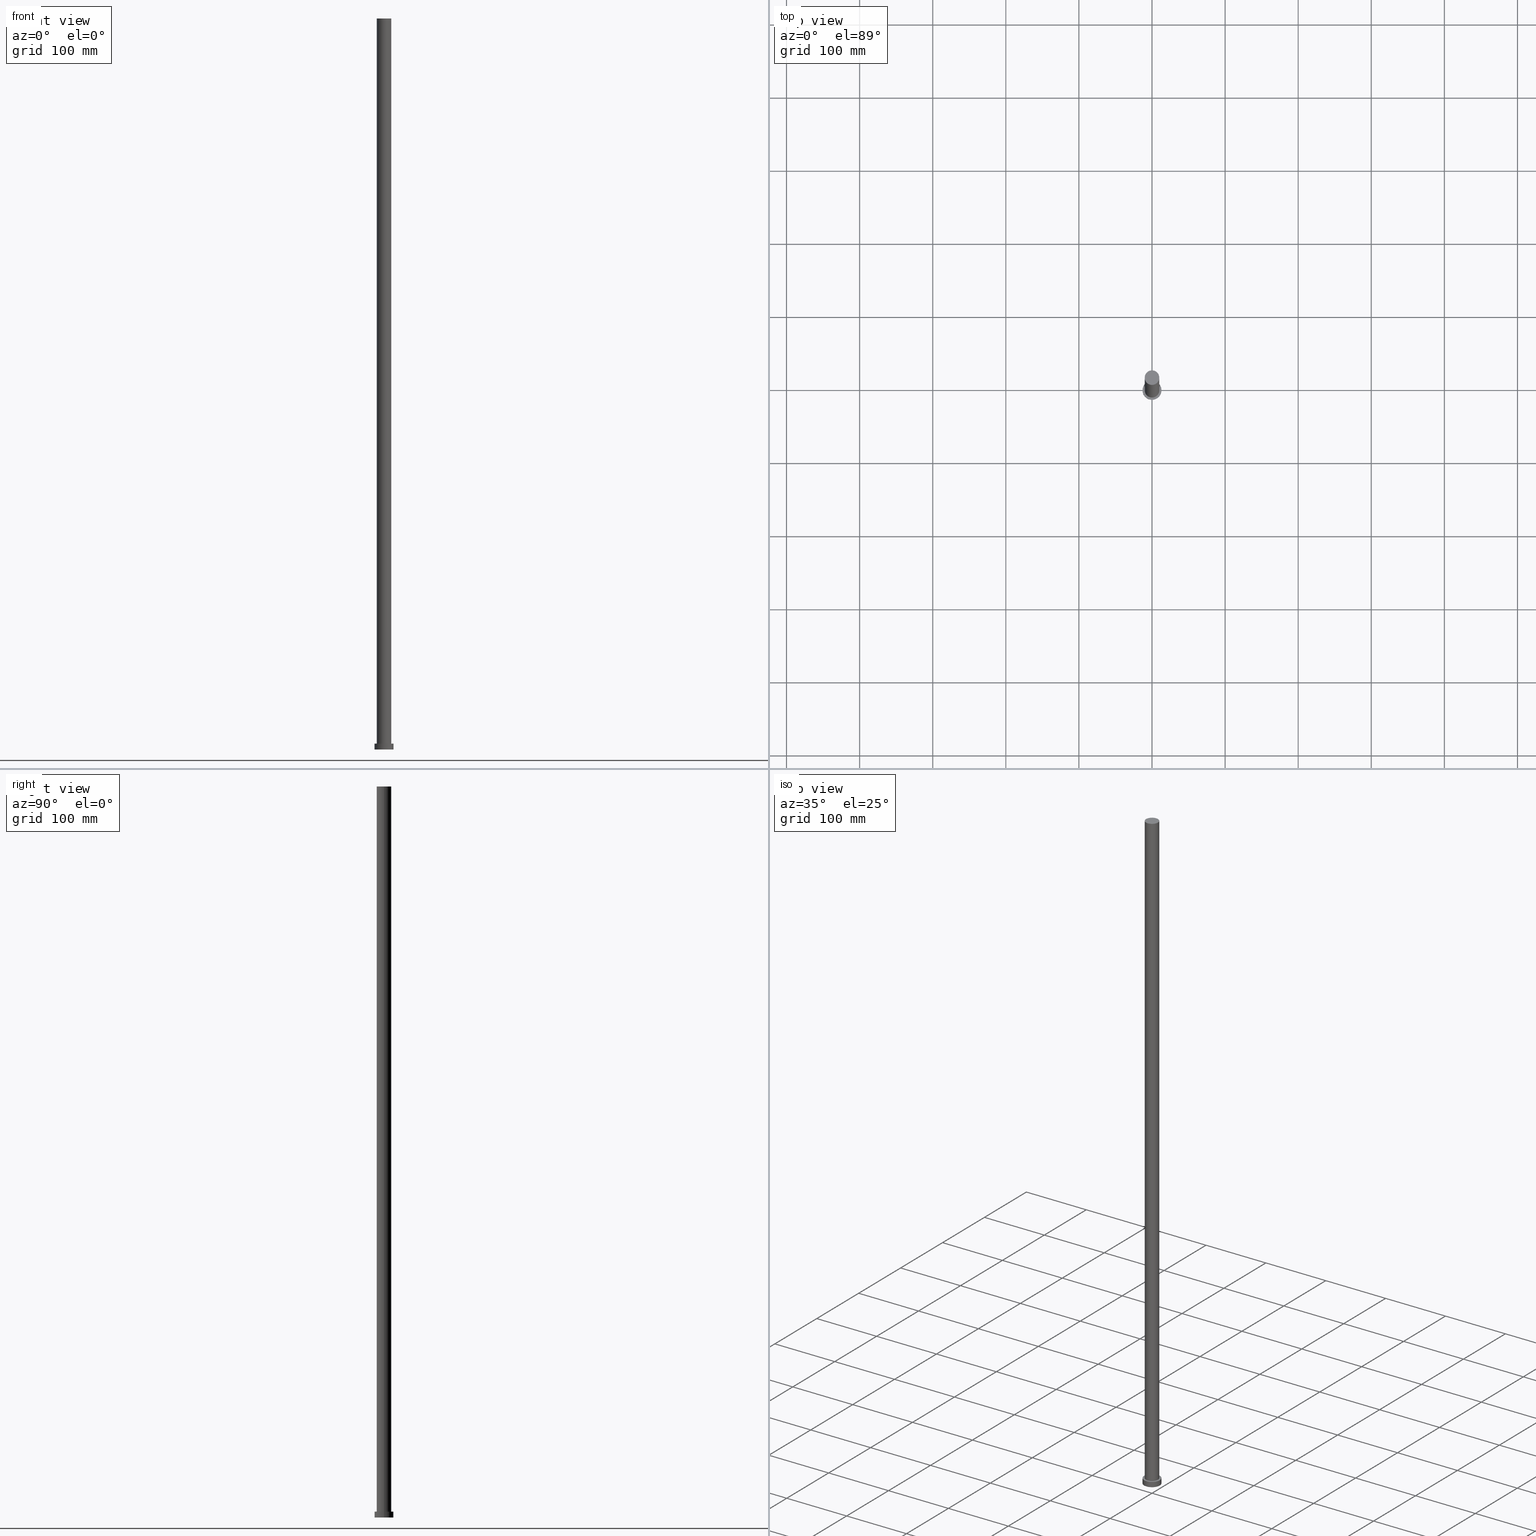
[diagram: canonical four-view strip — front | top / right | iso, engineering-drawing reading convention]
A machine part, canonical four-view strip (front | top / right | iso — engineering-drawing reading convention). The complete STEP part file that produces these views, byte-faithful:
ISO-10303-21;
HEADER;
FILE_DESCRIPTION (( 'STEP AP203' ),
    '1' );
FILE_NAME ('4177.STEP',
    '2023-02-13T07:32:41',
    ( '' ),
    ( '' ),
    'SwSTEP 2.0',
    'SolidWorks 2019',
    '' );
FILE_SCHEMA (( 'CONFIG_CONTROL_DESIGN' ));
ENDSEC;

DATA;
#1 = PERSON_AND_ORGANIZATION ( #95, #45 ) ;
#2 = LOCAL_TIME ( 8, 32, 41.00000000000000000, #44 ) ;
#3 = DIRECTION ( 'NONE',  ( -0.000000000000000000, -0.000000000000000000, -1.000000000000000000 ) ) ;
#4 = DATE_AND_TIME ( #133, #181 ) ;
#5 = DIRECTION ( 'NONE',  ( 0.000000000000000000, 0.000000000000000000, 1.000000000000000000 ) ) ;
#6 = AXIS2_PLACEMENT_3D ( 'NONE', #236, #155, #165 ) ;
#7 = APPROVAL_STATUS ( 'not_yet_approved' ) ;
#8 = DIRECTION ( 'NONE',  ( 1.000000000000000000, 0.000000000000000000, -0.000000000000000000 ) ) ;
#9 = SHAPE_DEFINITION_REPRESENTATION ( #49, #31 ) ;
#10 = APPROVAL ( #7, 'NEUR�EN�' ) ;
#11 = DIRECTION ( 'NONE',  ( -0.000000000000000000, -0.000000000000000000, -1.000000000000000000 ) ) ;
#12 = APPROVAL_DATE_TIME ( #139, #70 ) ;
#13 = CARTESIAN_POINT ( 'NONE',  ( 0.000000000000000000, 0.000000000000000000, 0.000000000000000000 ) ) ;
#14 = EDGE_CURVE ( 'NONE', #74, #17, #145, .T. ) ;
#15 = ORIENTED_EDGE ( 'NONE', *, *, #116, .F. ) ;
#16 = ORIENTED_EDGE ( 'NONE', *, *, #144, .T. ) ;
#17 = VERTEX_POINT ( 'NONE', #40 ) ;
#18 = EDGE_CURVE ( 'NONE', #17, #37, #198, .T. ) ;
#19 = AXIS2_PLACEMENT_3D ( 'NONE', #68, #108, #41 ) ;
#20 = APPROVAL_ROLE ( '' ) ;
#21 = CC_DESIGN_APPROVAL ( #70, ( #72 ) ) ;
#22 = FACE_BOUND ( 'NONE', #213, .T. ) ;
#23 = CIRCLE ( 'NONE', #253, 13.00000000000000178 ) ;
#24 = CARTESIAN_POINT ( 'NONE',  ( 13.00000000000000178, 1.592040838891559293E-15, 0.000000000000000000 ) ) ;
#25 = DIRECTION ( 'NONE',  ( 1.000000000000000000, 0.000000000000000000, 0.000000000000000000 ) ) ;
#26 = APPROVAL_STATUS ( 'not_yet_approved' ) ;
#27 = PRODUCT ( '4177', '4177', '', ( #115 ) ) ;
#28 = CARTESIAN_POINT ( 'NONE',  ( 0.000000000000000000, 0.000000000000000000, 1000.000000000000000 ) ) ;
#29 = APPLICATION_PROTOCOL_DEFINITION ( 'international standard', 'config_control_design', 1994, #129 ) ;
#30 = APPROVAL_DATE_TIME ( #158, #61 ) ;
#31 = ADVANCED_BREP_SHAPE_REPRESENTATION ( '4177', ( #192, #208 ), #135 ) ;
#32 = EDGE_CURVE ( 'NONE', #245, #120, #103, .T. ) ;
#33 = DIRECTION ( 'NONE',  ( 1.000000000000000000, 0.000000000000000000, -0.000000000000000000 ) ) ;
#34 = ORIENTED_EDGE ( 'NONE', *, *, #248, .F. ) ;
#35 = EDGE_LOOP ( 'NONE', ( #229, #143 ) ) ;
#36 = ADVANCED_FACE ( 'NONE', ( #82 ), #122, .T. ) ;
#37 = VERTEX_POINT ( 'NONE', #24 ) ;
#38 = CC_DESIGN_DATE_AND_TIME_ASSIGNMENT ( #4, #128, ( #202 ) ) ;
#39 = EDGE_CURVE ( 'NONE', #245, #57, #123, .T. ) ;
#40 = CARTESIAN_POINT ( 'NONE',  ( 13.00000000000000178, 1.592040838891559293E-15, 8.000000000000000000 ) ) ;
#41 = DIRECTION ( 'NONE',  ( 1.000000000000000000, 0.000000000000000000, 0.000000000000000000 ) ) ;
#42 = PERSON_AND_ORGANIZATION_ROLE ( 'classification_officer' ) ;
#43 = DIRECTION ( 'NONE',  ( -0.000000000000000000, -0.000000000000000000, -1.000000000000000000 ) ) ;
#44 = COORDINATED_UNIVERSAL_TIME_OFFSET ( 1, 0, .AHEAD. ) ;
#45 = ORGANIZATION ( 'NEUR�EN�', 'NEUR�EN�', '' ) ;
#46 = DIRECTION ( 'NONE',  ( 1.000000000000000000, 0.000000000000000000, 0.000000000000000000 ) ) ;
#47 = DATE_TIME_ROLE ( 'creation_date' ) ;
#48 = CC_DESIGN_PERSON_AND_ORGANIZATION_ASSIGNMENT ( #156, #117, ( #27 ) ) ;
#49 = PRODUCT_DEFINITION_SHAPE ( 'NONE', 'NONE',  #72 ) ;
#50 = CARTESIAN_POINT ( 'NONE',  ( 0.000000000000000000, 0.000000000000000000, 8.000000000000000000 ) ) ;
#51 = FACE_OUTER_BOUND ( 'NONE', #141, .T. ) ;
#52 = APPROVAL_STATUS ( 'not_yet_approved' ) ;
#53 = DIRECTION ( 'NONE',  ( 1.000000000000000000, 0.000000000000000000, -0.000000000000000000 ) ) ;
#54 = VECTOR ( 'NONE', #58, 1000.000000000000000 ) ;
#55 = COORDINATED_UNIVERSAL_TIME_OFFSET ( 1, 0, .AHEAD. ) ;
#56 = ORIENTED_EDGE ( 'NONE', *, *, #191, .T. ) ;
#57 = VERTEX_POINT ( 'NONE', #59 ) ;
#58 = DIRECTION ( 'NONE',  ( -0.000000000000000000, -0.000000000000000000, -1.000000000000000000 ) ) ;
#59 = CARTESIAN_POINT ( 'NONE',  ( 10.00000000000000000, 1.224646799147353256E-15, 1000.000000000000000 ) ) ;
#60 = CALENDAR_DATE ( 2023, 13, 2 ) ;
#61 = APPROVAL ( #26, 'NEUR�EN�' ) ;
#62 = CC_DESIGN_PERSON_AND_ORGANIZATION_ASSIGNMENT ( #94, #175, ( #72 ) ) ;
#63 = LINE ( 'NONE', #149, #147 ) ;
#64 = CARTESIAN_POINT ( 'NONE',  ( -13.00000000000000178, 0.000000000000000000, 8.000000000000000000 ) ) ;
#65 = APPROVAL_PERSON_ORGANIZATION ( #206, #61, #20 ) ;
#66 = CARTESIAN_POINT ( 'NONE',  ( 0.000000000000000000, 0.000000000000000000, 0.000000000000000000 ) ) ;
#67 = PERSON_AND_ORGANIZATION_ROLE ( 'design_supplier' ) ;
#68 = CARTESIAN_POINT ( 'NONE',  ( 0.000000000000000000, 0.000000000000000000, 0.000000000000000000 ) ) ;
#69 = DIRECTION ( 'NONE',  ( 0.000000000000000000, 0.000000000000000000, 1.000000000000000000 ) ) ;
#70 = APPROVAL ( #52, 'NEUR�EN�' ) ;
#71 = CIRCLE ( 'NONE', #211, 13.00000000000000178 ) ;
#72 = PRODUCT_DEFINITION ( 'NEZN�M�', '', #227, #251 ) ;
#73 =( LENGTH_UNIT ( ) NAMED_UNIT ( * ) SI_UNIT ( .MILLI., .METRE. ) );
#74 = VERTEX_POINT ( 'NONE', #90 ) ;
#75 = AXIS2_PLACEMENT_3D ( 'NONE', #246, #230, #125 ) ;
#76 = ORIENTED_EDGE ( 'NONE', *, *, #97, .F. ) ;
#77 = CC_DESIGN_APPROVAL ( #10, ( #227 ) ) ;
#78 = ORIENTED_EDGE ( 'NONE', *, *, #39, .F. ) ;
#79 = CARTESIAN_POINT ( 'NONE',  ( 13.00000000000000178, 1.592040838891559293E-15, 8.000000000000000000 ) ) ;
#80 = ADVANCED_FACE ( 'NONE', ( #111 ), #170, .T. ) ;
#81 = ORIENTED_EDGE ( 'NONE', *, *, #159, .T. ) ;
#82 = FACE_OUTER_BOUND ( 'NONE', #35, .T. ) ;
#83 = COORDINATED_UNIVERSAL_TIME_OFFSET ( 1, 0, .AHEAD. ) ;
#84 = AXIS2_PLACEMENT_3D ( 'NONE', #13, #138, #33 ) ;
#85 = CC_DESIGN_DATE_AND_TIME_ASSIGNMENT ( #232, #47, ( #72 ) ) ;
#86 = CALENDAR_DATE ( 2023, 13, 2 ) ;
#87 = AXIS2_PLACEMENT_3D ( 'NONE', #247, #201, #8 ) ;
#88 = LINE ( 'NONE', #64, #132 ) ;
#89 = PERSON_AND_ORGANIZATION ( #95, #45 ) ;
#90 = CARTESIAN_POINT ( 'NONE',  ( -13.00000000000000178, 0.000000000000000000, 8.000000000000000000 ) ) ;
#91 = FACE_OUTER_BOUND ( 'NONE', #121, .T. ) ;
#92 = FACE_OUTER_BOUND ( 'NONE', #160, .T. ) ;
#93 = AXIS2_PLACEMENT_3D ( 'NONE', #28, #226, #239 ) ;
#94 = PERSON_AND_ORGANIZATION ( #95, #45 ) ;
#95 = PERSON ( 'NEUR�EN�', 'NEUR�EN�', 'NEUR�EN�', ('NEUR�EN�'), ('NEUR�EN�'), ('NEUR�EN�') ) ;
#96 = CARTESIAN_POINT ( 'NONE',  ( -10.00000000000000000, 0.000000000000000000, 1000.000000000000000 ) ) ;
#97 = EDGE_CURVE ( 'NONE', #74, #199, #88, .T. ) ;
#98 = PRODUCT_RELATED_PRODUCT_CATEGORY ( 'detail', '', ( #27 ) ) ;
#99 = DIRECTION ( 'NONE',  ( -1.000000000000000000, 0.000000000000000000, 0.000000000000000000 ) ) ;
#100 = EDGE_LOOP ( 'NONE', ( #124, #146 ) ) ;
#101 = EDGE_CURVE ( 'NONE', #37, #199, #71, .T. ) ;
#102 = ORIENTED_EDGE ( 'NONE', *, *, #116, .T. ) ;
#103 = LINE ( 'NONE', #231, #200 ) ;
#104 = ORIENTED_EDGE ( 'NONE', *, *, #32, .T. ) ;
#105 = ORIENTED_EDGE ( 'NONE', *, *, #97, .T. ) ;
#106 = ADVANCED_FACE ( 'NONE', ( #51 ), #134, .T. ) ;
#107 = CIRCLE ( 'NONE', #189, 10.00000000000000000 ) ;
#108 = DIRECTION ( 'NONE',  ( 0.000000000000000000, 0.000000000000000000, 1.000000000000000000 ) ) ;
#109 = APPROVAL_DATE_TIME ( #169, #10 ) ;
#110 = COORDINATED_UNIVERSAL_TIME_OFFSET ( 1, 0, .AHEAD. ) ;
#111 = FACE_OUTER_BOUND ( 'NONE', #119, .T. ) ;
#112 = AXIS2_PLACEMENT_3D ( 'NONE', #173, #148, #218 ) ;
#113 = CARTESIAN_POINT ( 'NONE',  ( -10.00000000000000000, 0.000000000000000000, 8.000000000000000000 ) ) ;
#114 = DIRECTION ( 'NONE',  ( 0.000000000000000000, 0.000000000000000000, 1.000000000000000000 ) ) ;
#115 = MECHANICAL_CONTEXT ( 'NONE', #129, 'mechanical' ) ;
#116 = EDGE_CURVE ( 'NONE', #17, #74, #23, .T. ) ;
#117 = PERSON_AND_ORGANIZATION_ROLE ( 'design_owner' ) ;
#118 =( NAMED_UNIT ( * ) PLANE_ANGLE_UNIT ( ) SI_UNIT ( $, .RADIAN. ) );
#119 = EDGE_LOOP ( 'NONE', ( #34, #56, #16, #196 ) ) ;
#120 = VERTEX_POINT ( 'NONE', #113 ) ;
#121 = EDGE_LOOP ( 'NONE', ( #254, #102 ) ) ;
#122 = PLANE ( 'NONE',  #87 ) ;
#123 = CIRCLE ( 'NONE', #222, 10.00000000000000000 ) ;
#124 = ORIENTED_EDGE ( 'NONE', *, *, #161, .F. ) ;
#125 = DIRECTION ( 'NONE',  ( 1.000000000000000000, 0.000000000000000000, 0.000000000000000000 ) ) ;
#126 = LOCAL_TIME ( 8, 32, 41.00000000000000000, #110 ) ;
#127 = DIRECTION ( 'NONE',  ( -0.000000000000000000, -0.000000000000000000, -1.000000000000000000 ) ) ;
#128 = DATE_TIME_ROLE ( 'classification_date' ) ;
#129 = APPLICATION_CONTEXT ( 'configuration controlled 3d designs of mechanical parts and assemblies' ) ;
#130 = CARTESIAN_POINT ( 'NONE',  ( 10.00000000000000000, 1.224646799147353256E-15, 8.000000000000000000 ) ) ;
#131 = FACE_OUTER_BOUND ( 'NONE', #180, .T. ) ;
#132 = VECTOR ( 'NONE', #168, 1000.000000000000000 ) ;
#133 = CALENDAR_DATE ( 2023, 13, 2 ) ;
#134 = CYLINDRICAL_SURFACE ( 'NONE', #215, 13.00000000000000178 ) ;
#135 =( GEOMETRIC_REPRESENTATION_CONTEXT ( 3 ) GLOBAL_UNCERTAINTY_ASSIGNED_CONTEXT ( ( #164 ) ) GLOBAL_UNIT_ASSIGNED_CONTEXT ( ( #73, #118, #243 ) ) REPRESENTATION_CONTEXT ( 'NONE', 'WORKASPACE' ) );
#136 = ORIENTED_EDGE ( 'NONE', *, *, #144, .F. ) ;
#137 = CC_DESIGN_PERSON_AND_ORGANIZATION_ASSIGNMENT ( #1, #184, ( #227 ) ) ;
#138 = DIRECTION ( 'NONE',  ( 0.000000000000000000, 0.000000000000000000, 1.000000000000000000 ) ) ;
#139 = DATE_AND_TIME ( #223, #205 ) ;
#140 = CIRCLE ( 'NONE', #19, 13.00000000000000178 ) ;
#141 = EDGE_LOOP ( 'NONE', ( #15, #212, #182, #76 ) ) ;
#142 = APPLICATION_CONTEXT ( 'configuration controlled 3d designs of mechanical parts and assemblies' ) ;
#143 = ORIENTED_EDGE ( 'NONE', *, *, #248, .T. ) ;
#144 = EDGE_CURVE ( 'NONE', #197, #120, #107, .T. ) ;
#145 = CIRCLE ( 'NONE', #75, 13.00000000000000178 ) ;
#146 = ORIENTED_EDGE ( 'NONE', *, *, #101, .F. ) ;
#147 = VECTOR ( 'NONE', #43, 1000.000000000000000 ) ;
#148 = DIRECTION ( 'NONE',  ( 0.000000000000000000, 0.000000000000000000, 1.000000000000000000 ) ) ;
#149 = CARTESIAN_POINT ( 'NONE',  ( 10.00000000000000000, 1.224646799147353256E-15, 1000.000000000000000 ) ) ;
#150 = PERSON_AND_ORGANIZATION ( #95, #45 ) ;
#151 = DIRECTION ( 'NONE',  ( 0.000000000000000000, 0.000000000000000000, 1.000000000000000000 ) ) ;
#152 = AXIS2_PLACEMENT_3D ( 'NONE', #185, #3, #233 ) ;
#153 = CARTESIAN_POINT ( 'NONE',  ( 0.000000000000000000, 0.000000000000000000, 8.000000000000000000 ) ) ;
#154 = PERSON_AND_ORGANIZATION ( #95, #45 ) ;
#155 = DIRECTION ( 'NONE',  ( -0.000000000000000000, -0.000000000000000000, -1.000000000000000000 ) ) ;
#156 = PERSON_AND_ORGANIZATION ( #95, #45 ) ;
#157 = CARTESIAN_POINT ( 'NONE',  ( 0.000000000000000000, 0.000000000000000000, 8.000000000000000000 ) ) ;
#158 = DATE_AND_TIME ( #86, #126 ) ;
#159 = EDGE_CURVE ( 'NONE', #120, #197, #238, .T. ) ;
#160 = EDGE_LOOP ( 'NONE', ( #249, #214, #105, #179 ) ) ;
#161 = EDGE_CURVE ( 'NONE', #199, #37, #140, .T. ) ;
#162 = AXIS2_PLACEMENT_3D ( 'NONE', #193, #11, #99 ) ;
#163 = APPROVAL_PERSON_ORGANIZATION ( #150, #10, #171 ) ;
#164 = UNCERTAINTY_MEASURE_WITH_UNIT (LENGTH_MEASURE( 1.000000000000000082E-05 ), #73, 'distance_accuracy_value', 'NONE');
#165 = DIRECTION ( 'NONE',  ( -1.000000000000000000, 0.000000000000000000, 0.000000000000000000 ) ) ;
#166 = AXIS2_PLACEMENT_3D ( 'NONE', #157, #114, #53 ) ;
#167 = DIRECTION ( 'NONE',  ( 0.000000000000000000, 0.000000000000000000, 1.000000000000000000 ) ) ;
#168 = DIRECTION ( 'NONE',  ( -0.000000000000000000, -0.000000000000000000, -1.000000000000000000 ) ) ;
#169 = DATE_AND_TIME ( #237, #250 ) ;
#170 = CYLINDRICAL_SURFACE ( 'NONE', #6, 10.00000000000000000 ) ;
#171 = APPROVAL_ROLE ( '' ) ;
#172 = APPROVAL_PERSON_ORGANIZATION ( #177, #70, #174 ) ;
#173 = CARTESIAN_POINT ( 'NONE',  ( 0.000000000000000000, 0.000000000000000000, 8.000000000000000000 ) ) ;
#174 = APPROVAL_ROLE ( '' ) ;
#175 = PERSON_AND_ORGANIZATION_ROLE ( 'creator' ) ;
#176 = PLANE ( 'NONE',  #166 ) ;
#177 = PERSON_AND_ORGANIZATION ( #95, #45 ) ;
#178 = ORIENTED_EDGE ( 'NONE', *, *, #159, .F. ) ;
#179 = ORIENTED_EDGE ( 'NONE', *, *, #161, .T. ) ;
#180 = EDGE_LOOP ( 'NONE', ( #224, #78, #104, #81 ) ) ;
#181 = LOCAL_TIME ( 8, 32, 41.00000000000000000, #83 ) ;
#182 = ORIENTED_EDGE ( 'NONE', *, *, #101, .T. ) ;
#183 = COORDINATED_UNIVERSAL_TIME_OFFSET ( 1, 0, .AHEAD. ) ;
#184 = PERSON_AND_ORGANIZATION_ROLE ( 'creator' ) ;
#185 = CARTESIAN_POINT ( 'NONE',  ( 0.000000000000000000, 0.000000000000000000, 1000.000000000000000 ) ) ;
#186 = CIRCLE ( 'NONE', #93, 10.00000000000000000 ) ;
#187 = SECURITY_CLASSIFICATION_LEVEL ( 'unclassified' ) ;
#188 = ADVANCED_FACE ( 'NONE', ( #131 ), #203, .T. ) ;
#189 = AXIS2_PLACEMENT_3D ( 'NONE', #190, #151, #46 ) ;
#190 = CARTESIAN_POINT ( 'NONE',  ( 0.000000000000000000, 0.000000000000000000, 8.000000000000000000 ) ) ;
#191 = EDGE_CURVE ( 'NONE', #57, #197, #63, .T. ) ;
#192 = MANIFOLD_SOLID_BREP ( 'P�idat vysunut�m3', #194 ) ;
#193 = CARTESIAN_POINT ( 'NONE',  ( 0.000000000000000000, 0.000000000000000000, 8.000000000000000000 ) ) ;
#194 = CLOSED_SHELL ( 'NONE', ( #80, #106, #244, #216, #217, #188, #36 ) ) ;
#195 = CARTESIAN_POINT ( 'NONE',  ( 0.000000000000000000, 0.000000000000000000, 0.000000000000000000 ) ) ;
#196 = ORIENTED_EDGE ( 'NONE', *, *, #32, .F. ) ;
#197 = VERTEX_POINT ( 'NONE', #130 ) ;
#198 = LINE ( 'NONE', #79, #54 ) ;
#199 = VERTEX_POINT ( 'NONE', #204 ) ;
#200 = VECTOR ( 'NONE', #255, 1000.000000000000000 ) ;
#201 = DIRECTION ( 'NONE',  ( 0.000000000000000000, 0.000000000000000000, 1.000000000000000000 ) ) ;
#202 = SECURITY_CLASSIFICATION ( '', '', #187 ) ;
#203 = CYLINDRICAL_SURFACE ( 'NONE', #152, 10.00000000000000000 ) ;
#204 = CARTESIAN_POINT ( 'NONE',  ( -13.00000000000000178, 0.000000000000000000, 0.000000000000000000 ) ) ;
#205 = LOCAL_TIME ( 8, 32, 41.00000000000000000, #55 ) ;
#206 = PERSON_AND_ORGANIZATION ( #95, #45 ) ;
#207 = DIRECTION ( 'NONE',  ( 0.000000000000000000, 0.000000000000000000, 1.000000000000000000 ) ) ;
#208 = AXIS2_PLACEMENT_3D ( 'NONE', #195, #69, #209 ) ;
#209 = DIRECTION ( 'NONE',  ( 1.000000000000000000, 0.000000000000000000, 0.000000000000000000 ) ) ;
#210 = CYLINDRICAL_SURFACE ( 'NONE', #162, 13.00000000000000178 ) ;
#211 = AXIS2_PLACEMENT_3D ( 'NONE', #66, #5, #234 ) ;
#212 = ORIENTED_EDGE ( 'NONE', *, *, #18, .T. ) ;
#213 = EDGE_LOOP ( 'NONE', ( #178, #136 ) ) ;
#214 = ORIENTED_EDGE ( 'NONE', *, *, #14, .F. ) ;
#215 = AXIS2_PLACEMENT_3D ( 'NONE', #153, #127, #221 ) ;
#216 = ADVANCED_FACE ( 'NONE', ( #22, #91 ), #176, .T. ) ;
#217 = ADVANCED_FACE ( 'NONE', ( #225 ), #242, .F. ) ;
#218 = DIRECTION ( 'NONE',  ( 1.000000000000000000, 0.000000000000000000, 0.000000000000000000 ) ) ;
#219 = CARTESIAN_POINT ( 'NONE',  ( 0.000000000000000000, 0.000000000000000000, 1000.000000000000000 ) ) ;
#220 = DIRECTION ( 'NONE',  ( 1.000000000000000000, 0.000000000000000000, 0.000000000000000000 ) ) ;
#221 = DIRECTION ( 'NONE',  ( -1.000000000000000000, 0.000000000000000000, 0.000000000000000000 ) ) ;
#222 = AXIS2_PLACEMENT_3D ( 'NONE', #219, #167, #220 ) ;
#223 = CALENDAR_DATE ( 2023, 13, 2 ) ;
#224 = ORIENTED_EDGE ( 'NONE', *, *, #191, .F. ) ;
#225 = FACE_OUTER_BOUND ( 'NONE', #100, .T. ) ;
#226 = DIRECTION ( 'NONE',  ( 0.000000000000000000, 0.000000000000000000, 1.000000000000000000 ) ) ;
#227 = PRODUCT_DEFINITION_FORMATION_WITH_SPECIFIED_SOURCE ( 'LIBOVOLN�', '', #27, .NOT_KNOWN. ) ;
#228 = APPLICATION_PROTOCOL_DEFINITION ( 'international standard', 'config_control_design', 1994, #142 ) ;
#229 = ORIENTED_EDGE ( 'NONE', *, *, #39, .T. ) ;
#230 = DIRECTION ( 'NONE',  ( 0.000000000000000000, 0.000000000000000000, 1.000000000000000000 ) ) ;
#231 = CARTESIAN_POINT ( 'NONE',  ( -10.00000000000000000, 0.000000000000000000, 1000.000000000000000 ) ) ;
#232 = DATE_AND_TIME ( #60, #2 ) ;
#233 = DIRECTION ( 'NONE',  ( -1.000000000000000000, 0.000000000000000000, 0.000000000000000000 ) ) ;
#234 = DIRECTION ( 'NONE',  ( 1.000000000000000000, 0.000000000000000000, 0.000000000000000000 ) ) ;
#235 = CC_DESIGN_APPROVAL ( #61, ( #202 ) ) ;
#236 = CARTESIAN_POINT ( 'NONE',  ( 0.000000000000000000, 0.000000000000000000, 1000.000000000000000 ) ) ;
#237 = CALENDAR_DATE ( 2023, 13, 2 ) ;
#238 = CIRCLE ( 'NONE', #112, 10.00000000000000000 ) ;
#239 = DIRECTION ( 'NONE',  ( 1.000000000000000000, 0.000000000000000000, 0.000000000000000000 ) ) ;
#240 = CC_DESIGN_SECURITY_CLASSIFICATION ( #202, ( #227 ) ) ;
#241 = CC_DESIGN_PERSON_AND_ORGANIZATION_ASSIGNMENT ( #154, #42, ( #202 ) ) ;
#242 = PLANE ( 'NONE',  #84 ) ;
#243 =( NAMED_UNIT ( * ) SI_UNIT ( $, .STERADIAN. ) SOLID_ANGLE_UNIT ( ) );
#244 = ADVANCED_FACE ( 'NONE', ( #92 ), #210, .T. ) ;
#245 = VERTEX_POINT ( 'NONE', #96 ) ;
#246 = CARTESIAN_POINT ( 'NONE',  ( 0.000000000000000000, 0.000000000000000000, 8.000000000000000000 ) ) ;
#247 = CARTESIAN_POINT ( 'NONE',  ( 0.000000000000000000, 0.000000000000000000, 1000.000000000000000 ) ) ;
#248 = EDGE_CURVE ( 'NONE', #57, #245, #186, .T. ) ;
#249 = ORIENTED_EDGE ( 'NONE', *, *, #18, .F. ) ;
#250 = LOCAL_TIME ( 8, 32, 41.00000000000000000, #183 ) ;
#251 = DESIGN_CONTEXT ( 'detailed design', #142, 'design' ) ;
#252 = CC_DESIGN_PERSON_AND_ORGANIZATION_ASSIGNMENT ( #89, #67, ( #227 ) ) ;
#253 = AXIS2_PLACEMENT_3D ( 'NONE', #50, #207, #25 ) ;
#254 = ORIENTED_EDGE ( 'NONE', *, *, #14, .T. ) ;
#255 = DIRECTION ( 'NONE',  ( -0.000000000000000000, -0.000000000000000000, -1.000000000000000000 ) ) ;
ENDSEC;
END-ISO-10303-21;
